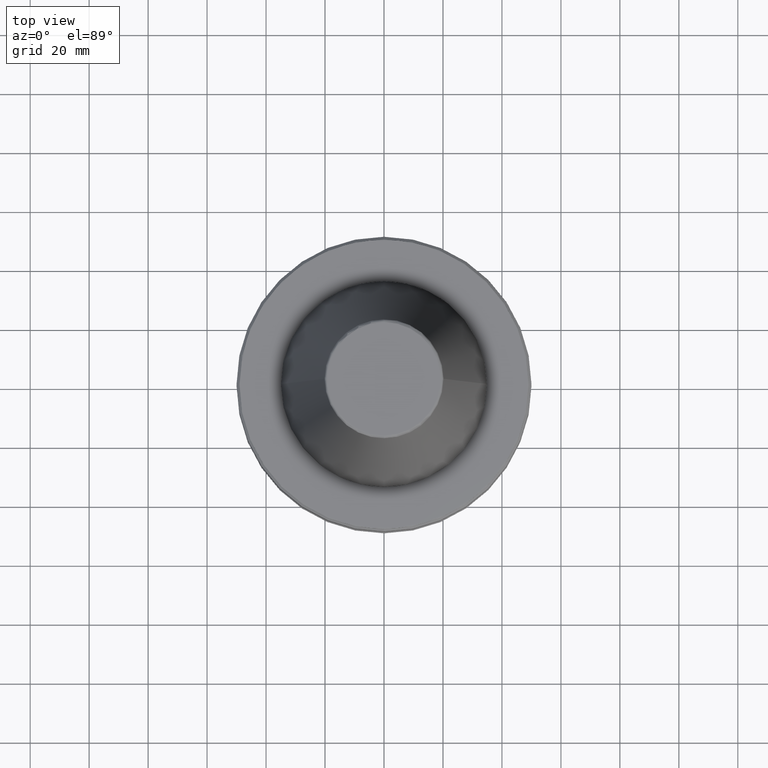
[diagram: clean part render]
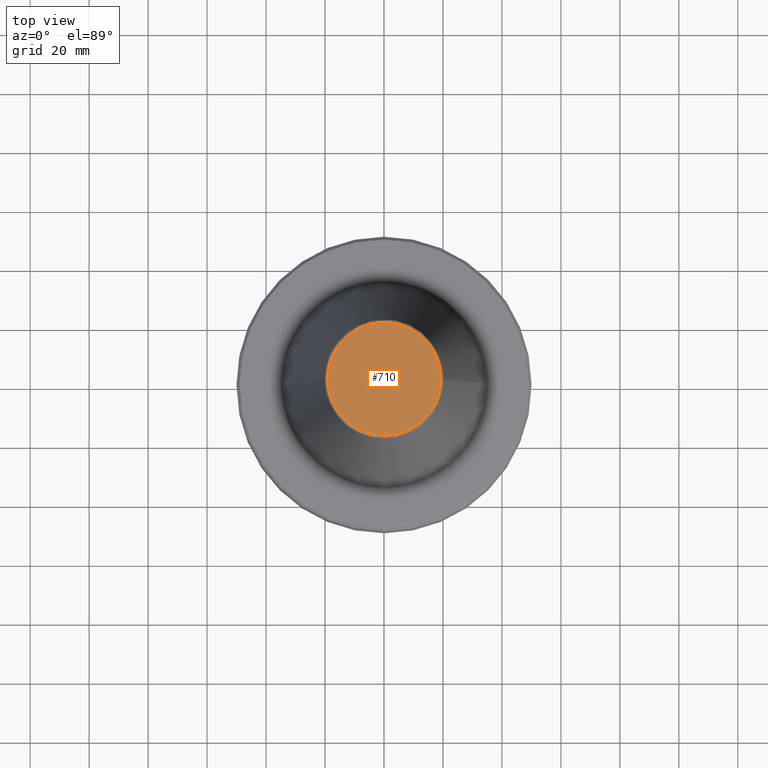
[diagram: same view with one face highlighted and labeled with its STEP entity id]
A machine part, top view. The second image highlights one B-rep face of the part: STEP entity #710.
In plain terms, the highlighted planar face has unit normal (0, -0, 1).
Its self-contained STEP definition (entity closure, byte-faithful):
#6 = EDGE_LOOP ( 'NONE', ( #1918, #1851 ) ) ;
#40 = CARTESIAN_POINT ( 'NONE',  ( -6.520818627017369600E-032, -19.21428326502953600, 101.7999999999999700 ) ) ;
#177 = FACE_OUTER_BOUND ( 'NONE', #6, .T. ) ;
#240 = AXIS2_PLACEMENT_3D ( 'NONE', #1943, #1676, #2284 ) ;
#428 = CIRCLE ( 'NONE', #524, 19.21428326502953600 ) ;
#524 = AXIS2_PLACEMENT_3D ( 'NONE', #1393, #1418, #2006 ) ;
#648 = EDGE_CURVE ( 'NONE', #1049, #1789, #1045, .T. ) ;
#710 = ADVANCED_FACE ( 'NONE', ( #177 ), #1934, .T. ) ;
#781 = CARTESIAN_POINT ( 'NONE',  ( 2.413662457824347100E-015, 19.21428326502953600, 101.8000000000000000 ) ) ;
#1045 = CIRCLE ( 'NONE', #240, 19.21428326502953600 ) ;
#1049 = VERTEX_POINT ( 'NONE', #40 ) ;
#1244 = AXIS2_PLACEMENT_3D ( 'NONE', #1894, #1997, #2467 ) ;
#1393 = CARTESIAN_POINT ( 'NONE',  ( -6.520818627017369600E-032, -1.176535524921451300E-015, 101.7999999999999800 ) ) ;
#1418 = DIRECTION ( 'NONE',  ( 6.520818627017413400E-032, 3.611320707723813400E-016, -1.000000000000000000 ) ) ;
#1676 = DIRECTION ( 'NONE',  ( 6.520818627017413400E-032, 3.611320707723813400E-016, -1.000000000000000000 ) ) ;
#1789 = VERTEX_POINT ( 'NONE', #781 ) ;
#1851 = ORIENTED_EDGE ( 'NONE', *, *, #2342, .F. ) ;
#1894 = CARTESIAN_POINT ( 'NONE',  ( 0.0000000000000000000, -7.352648960925681400E-014, 101.7999999999999700 ) ) ;
#1918 = ORIENTED_EDGE ( 'NONE', *, *, #648, .F. ) ;
#1934 = PLANE ( 'NONE',  #1244 ) ;
#1943 = CARTESIAN_POINT ( 'NONE',  ( -6.520818627017369600E-032, -1.176535524921451300E-015, 101.7999999999999800 ) ) ;
#1997 = DIRECTION ( 'NONE',  ( 0.0000000000000000000, -0.0000000000000000000, 1.000000000000000000 ) ) ;
#2006 = DIRECTION ( 'NONE',  ( 0.0000000000000000000, -1.000000000000000000, -7.222641415447626800E-016 ) ) ;
#2284 = DIRECTION ( 'NONE',  ( 0.0000000000000000000, -1.000000000000000000, -7.222641415447626800E-016 ) ) ;
#2342 = EDGE_CURVE ( 'NONE', #1789, #1049, #428, .T. ) ;
#2467 = DIRECTION ( 'NONE',  ( 1.000000000000000000, 0.0000000000000000000, -0.0000000000000000000 ) ) ;